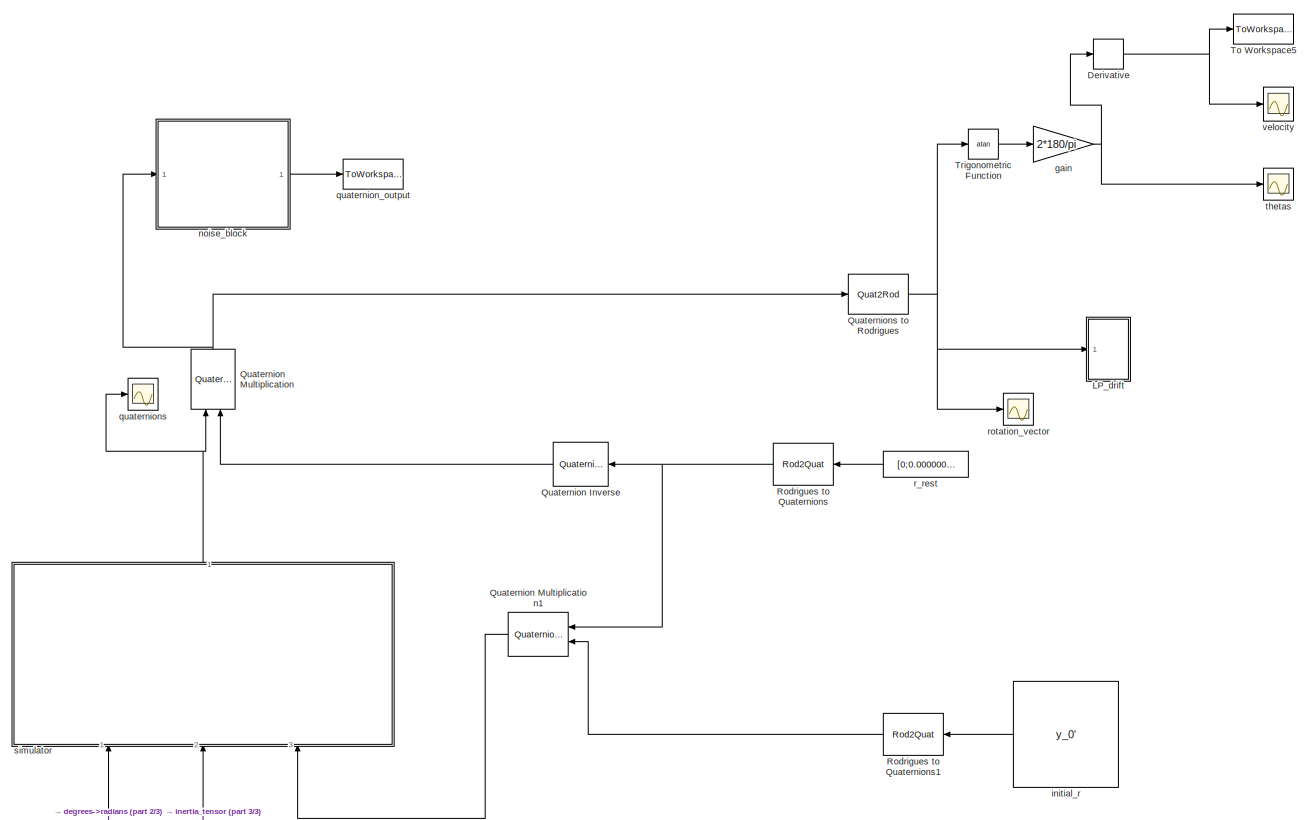
[diagram: root canvas - part 1/3, center side, full height]
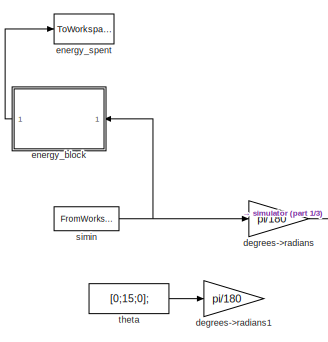
[diagram: root canvas - part 2/3, middle left region]
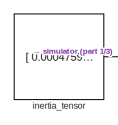
[diagram: root canvas - part 3/3, bottom left region]
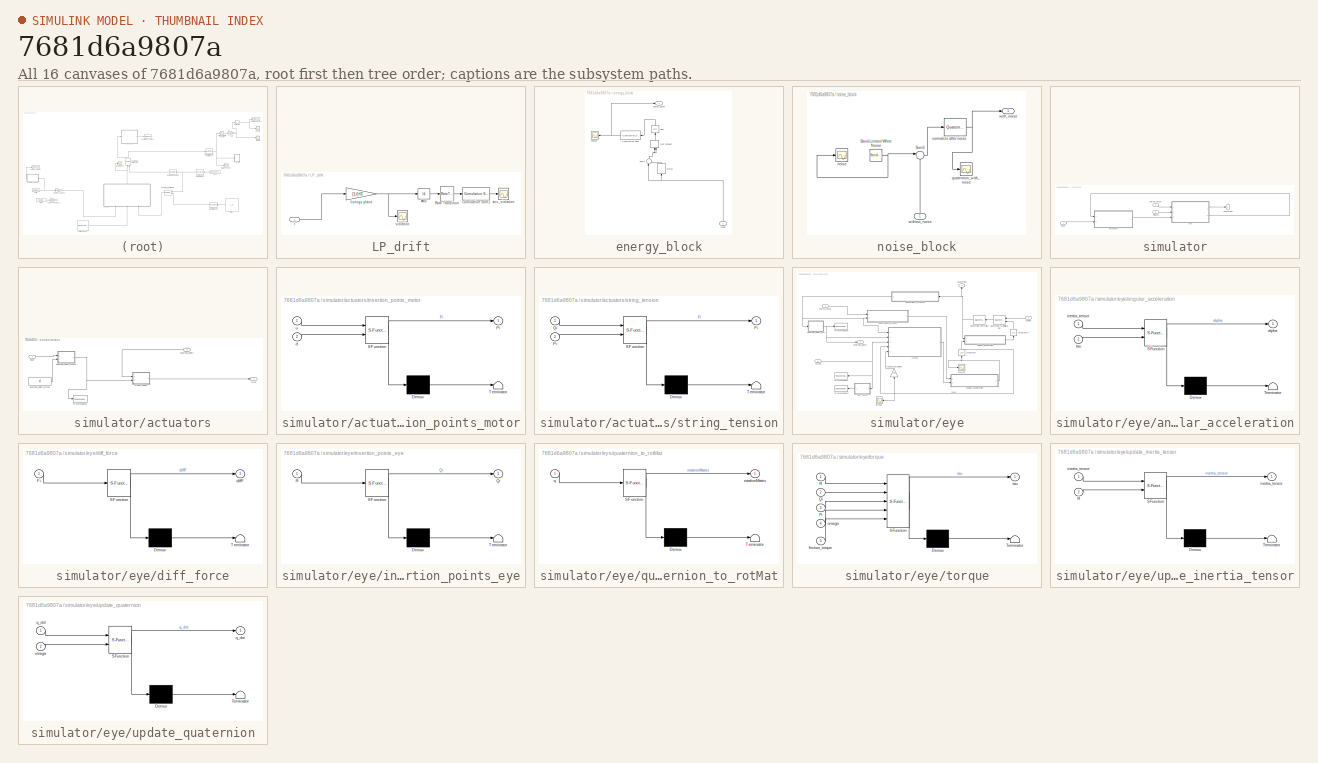
[diagram: thumbnail index - all 16 canvases of the model, root first then tree order]
MODEL slx_7681d6a9807a
KIND model
CONFIG AbsTol = auto
CONFIG EnableMultiTasking = off
CONFIG FixedStep = auto
CONFIG MaxStep = auto
CONFIG MinStep = auto
CONFIG RelTol = 1e-3
CONFIG SampleTimeConstraint = Unconstrained
CONFIG Solver = VariableStepAuto
CONFIG SolverName = VariableStepAuto
CONFIG StartTime = 0.0
CONFIG StopTime = 0.5
BLOCK [Derivative] Derivative
BLOCK [SubSystem] LP_drift
  Ports = [1]
  RequestExecContextInheritance = off
  Variant = off
BLOCK [Abs] LP_drift/Abs
  SaturateOnIntegerOverflow = off
BLOCK [Reference] LP_drift/Cumulative Sum1  REF=dspmathops/Cumulative
Sum
  Ports = [1, 1]
  SourceBlock = dspmathops/Cumulative\nSum
  SourceProductBaseCode = DS
  SourceProductName = DSP System Toolbox
  SourceType = Cumulative Sum
  UserDataPersistent = on
BLOCK [RateTransition] LP_drift/Rate Transition
  OutPortSampleTime = 0.01
BLOCK [Scope] LP_drift/acc_violation
  NumInputPorts = 1
  Ports = [1]
  ScopeSpecificationString = Simulink.scopes.TimeScopeBlockCfg('CurrentConfiguration', extmgr.ConfigurationSet(extmgr.Configuration('Core','General UI',true),extmgr.Configuration('Core','Source UI',true),extmgr.Configuration('Sources','WiredSimulink',true,'DataLoggingVariableName','ScopeData2'),extmgr.Configuration('Visuals','Time Domain',true,'SerializedDisplays',{struct('MinYLimReal','-0.01991','MaxYLimReal','0.17923','YLab...<+1756ch>
BLOCK [Gain] LP_drift/listings plane
  Gain = [1;0;0]'
  Multiplication = Matrix(K*u)
  OutDataTypeStr = Inherit: Inherit via internal rule
  ParamDataTypeStr = Inherit: Inherit via internal rule
  SaturateOnIntegerOverflow = off
BLOCK [Inport] LP_drift/r
  IconDisplay = Port number
BLOCK [Scope] LP_drift/violation
  NumInputPorts = 1
  Ports = [1]
  ScopeSpecificationString = Simulink.scopes.TimeScopeBlockCfg('CurrentConfiguration', extmgr.ConfigurationSet(extmgr.Configuration('Core','General UI',true,'FigureColor',[0 0 0]),extmgr.Configuration('Core','Source UI',true),extmgr.Configuration('Sources','WiredSimulink',true,'DataLoggingVariableName','ScopeData1'),extmgr.Configuration('Visuals','Time Domain',true,'SerializedDisplays',{struct('MinYLimReal','-0.01991','MaxYLi...<+1864ch>
BLOCK [Reference] Quaternion Inverse  REF=aerolibutil/Quaternion
Inverse
  Ports = [1, 1]
  SourceBlock = aerolibutil/Quaternion\nInverse
  SourceProductBaseCode = AE
  SourceProductName = Aerospace Blockset
  SourceType = Quaternion Inverse
BLOCK [Reference] Quaternion Multiplication  REF=aerolibutil/Quaternion
Multiplication
  Ports = [2, 1]
  SourceBlock = aerolibutil/Quaternion\nMultiplication
  SourceProductBaseCode = AE
  SourceProductName = Aerospace Blockset
  SourceType = Quaternion Multiplication
BLOCK [Reference] Quaternion Multiplication1  REF=aerolibutil/Quaternion
Multiplication
  Ports = [2, 1]
  SourceBlock = aerolibutil/Quaternion\nMultiplication
  SourceProductBaseCode = AE
  SourceProductName = Aerospace Blockset
  SourceType = Quaternion Multiplication
BLOCK [Quat2Rod] Quaternions to Rodrigues
  Ports = [1, 1]
BLOCK [Rod2Quat] Rodrigues to Quaternions
  Ports = [1, 1]
BLOCK [Rod2Quat] Rodrigues to Quaternions1
  Ports = [1, 1]
BLOCK [ToWorkspace] To Workspace5
  FixptAsFi = on
  MaxDataPoints = inf
  Ports = [1]
  SampleTime = 0.01
  Save2DSignal = 3-D array (concatenate along third dimension)
  SaveFormat = Timeseries
  VariableName = Velocity
BLOCK [Trigonometry] Trigonometric Function
  Operator = atan
  Ports = [1, 1]
BLOCK [Gain] degrees->radians
  Gain = pi/180
  OutDataTypeStr = Inherit: Inherit via internal rule
  ParamDataTypeStr = Inherit: Inherit via internal rule
  SaturateOnIntegerOverflow = off
BLOCK [Gain] degrees->radians1
  Gain = pi/180
  OutDataTypeStr = Inherit: Inherit via internal rule
  ParamDataTypeStr = Inherit: Inherit via internal rule
  SaturateOnIntegerOverflow = off
BLOCK [SubSystem] energy_block
  Ports = [1, 1]
  RequestExecContextInheritance = off
  Variant = off
BLOCK [Reference] energy_block/Cumulative Sum  REF=dspmathops/Cumulative
Sum
  Ports = [1, 1]
  SourceBlock = dspmathops/Cumulative\nSum
  SourceProductBaseCode = DS
  SourceProductName = DSP System Toolbox
  SourceType = Cumulative Sum
  UserDataPersistent = on
BLOCK [Delay] energy_block/Delay
  DelayLength = 1
  InitialCondition = 0
  InputPortMap = u0
  Ports = [1, 1]
  SampleTime = 0.01
BLOCK [DotProduct] energy_block/Dot Product
  OutDataTypeStr = Inherit: Inherit via internal rule
BLOCK [Sqrt] energy_block/Sqrt
BLOCK [Sum] energy_block/Sum4
  IconShape = round
  InputSameDT = off
  Inputs = |+-
  OutDataTypeStr = Inherit: Inherit via internal rule
  Ports = [2, 1]
  SaturateOnIntegerOverflow = off
BLOCK [Scope] energy_block/energy
  NumInputPorts = 1
  Ports = [1]
  ScopeSpecificationString = Simulink.scopes.TimeScopeBlockCfg('CurrentConfiguration', extmgr.ConfigurationSet(extmgr.Configuration('Core','General UI',true,'FigureColor',[0 0 0]),extmgr.Configuration('Core','Source UI',true),extmgr.Configuration('Sources','WiredSimulink',true,'DataLoggingVariableName','ScopeData1'),extmgr.Configuration('Visuals','Time Domain',true,'SerializedDisplays',{struct('MinYLimReal','-48168.16281','Ma...<+1882ch>
BLOCK [Outport] energy_block/energy_spent
  IconDisplay = Port number
BLOCK [Inport] energy_block/input
  IconDisplay = Port number
BLOCK [ToWorkspace] energy_spent
  FixptAsFi = on
  MaxDataPoints = inf
  Ports = [1]
  SampleTime = 0.01
  Save2DSignal = 3-D array (concatenate along third dimension)
  SaveFormat = Timeseries
  VariableName = Energy
BLOCK [Gain] gain
  Gain = 2*180/pi
  OutDataTypeStr = Inherit: Inherit via internal rule
  ParamDataTypeStr = Inherit: Inherit via internal rule
  SaturateOnIntegerOverflow = off
BLOCK [Constant] inertia_tensor
  Value = [ 0.0004759 -0.0000001 0.0000111;-0.0000001 0.0004316 0;0.0000111 0 0.0003956];
BLOCK [Constant] initial_r
  Value = y_0'
BLOCK [SubSystem] noise_block
  Ports = [1, 1]
  RequestExecContextInheritance = off
  Variant = off
BLOCK [Reference] noise_block/Band-Limited White Noise  REF=simulink/Sources/Band-Limited
White Noise
  Ports = [0, 1]
  SourceBlock = simulink/Sources/Band-Limited\nWhite Noise
  SourceProductBaseCode = SL
  SourceProductName = Simulink
  SourceType = Band-Limited White Noise.
BLOCK [Sum] noise_block/Sum3
  IconShape = round
  InputSameDT = off
  Inputs = |++
  OutDataTypeStr = Inherit: Inherit via internal rule
  Ports = [2, 1]
  SaturateOnIntegerOverflow = off
BLOCK [Scope] noise_block/noise
  NumInputPorts = 1
  Ports = [1]
  ScopeSpecificationString = Simulink.scopes.TimeScopeBlockCfg('CurrentConfiguration', extmgr.ConfigurationSet(extmgr.Configuration('Core','General UI',true),extmgr.Configuration('Core','Source UI',true),extmgr.Configuration('Sources','WiredSimulink',true,'DataLoggingVariableName','ScopeData2'),extmgr.Configuration('Visuals','Time Domain',true,'SerializedDisplays',{struct('MinYLimReal','-0.0093','MaxYLimReal','0.0119','YLabel...<+1749ch>
BLOCK [Reference] noise_block/normalize after noise  REF=sharedutil/Quaternion
Normalize
  Ports = [1, 1]
  SourceBlock = sharedutil/Quaternion\nNormalize
  SourceType = Quaternion Normalize
BLOCK [Scope] noise_block/quaternion_with_noise
  NumInputPorts = 1
  Ports = [1]
  ScopeSpecificationString = Simulink.scopes.TimeScopeBlockCfg('CurrentConfiguration', extmgr.ConfigurationSet(extmgr.Configuration('Core','General UI',true),extmgr.Configuration('Core','Source UI',true),extmgr.Configuration('Sources','WiredSimulink',true,'DataLoggingVariableName','ScopeData1'),extmgr.Configuration('Visuals','Time Domain',true,'SerializedDisplays',{struct('MinYLimReal','-0.41073','MaxYLimReal','1.15675','YLab...<+1505ch>
BLOCK [Outport] noise_block/with_noise
  IconDisplay = Port number
BLOCK [Inport] noise_block/without_noise
  IconDisplay = Port number
BLOCK [ToWorkspace] quaternion_output
  FixptAsFi = on
  MaxDataPoints = inf
  Ports = [1]
  SampleTime = 0.01
  Save2DSignal = 3-D array (concatenate along third dimension)
  SaveFormat = Timeseries
  VariableName = Q_imu
BLOCK [Scope] quaternions
  NumInputPorts = 1
  Ports = [1]
  ScopeSpecificationString = Simulink.scopes.TimeScopeBlockCfg('CurrentConfiguration', extmgr.ConfigurationSet(extmgr.Configuration('Core','General UI',true),extmgr.Configuration('Core','Source UI',true),extmgr.Configuration('Sources','WiredSimulink',true,'DataLoggingVariableName','ScopeData2'),extmgr.Configuration('Visuals','Time Domain',true,'SerializedDisplays',{struct('MinYLimReal','-0.41073','MaxYLimReal','1.15675','YLab...<+1552ch>
BLOCK [Constant] r_rest
  Value = [0;0.000000000000000000000001+0*-0.012776505264866;0]
BLOCK [Scope] rotation_vector
  NumInputPorts = 1
  Ports = [1]
  ScopeSpecificationString = Simulink.scopes.TimeScopeBlockCfg('CurrentConfiguration', extmgr.ConfigurationSet(extmgr.Configuration('Core','General UI',true),extmgr.Configuration('Core','Source UI',true),extmgr.Configuration('Sources','WiredSimulink',true,'DataLoggingVariableName','ScopeData1'),extmgr.Configuration('Visuals','Time Domain',true,'SerializedDisplays',{struct('MinYLimReal','-0.04388','MaxYLimReal','0.20069','YLab...<+1846ch>
BLOCK [FromWorkspace] simin
  SampleTime = 0.01
  VariableName = simin
  ZeroCross = on
BLOCK [SubSystem] simulator
  Ports = [3, 1]
  RequestExecContextInheritance = off
  Variant = off
BLOCK [SubSystem] simulator/actuators
  Ports = [2, 1]
  RequestExecContextInheritance = off
  Variant = off
BLOCK [ToWorkspace] simulator/actuators/To Workspace1
  FixptAsFi = on
  MaxDataPoints = inf
  Ports = [1]
  SampleTime = -1
  Save2DSignal = 3-D array (concatenate along third dimension)
  SaveFormat = Timeseries
  VariableName = Pi
BLOCK [Outport] simulator/actuators/force
  IconDisplay = Port number
BLOCK [Inport] simulator/actuators/input
  IconDisplay = Port number
  Port = 2
BLOCK [Inport] simulator/actuators/insertion_points
  IconDisplay = Port number
BLOCK [SubSystem] simulator/actuators/insertion_points_motor
  ErrorFcn = Stateflow.Translate.translate
  PermitHierarchicalResolution = ExplicitOnly
  Ports = [2, 1]
  RequestExecContextInheritance = off
  SFBlockType = MATLAB Function
  TreatAsAtomicUnit = on
  Variant = off
BLOCK [Demux] simulator/actuators/insertion_points_motor/ Demux 
  Outputs = 1
  Ports = [1, 1]
BLOCK [S-Function] simulator/actuators/insertion_points_motor/ SFunction 
  EnableBusSupport = on
  FunctionName = sf_sfun
  PortCounts = [2 2]
  Ports = [2, 2]
  SFcnIsStateOwnerBlock = off
  SFunctionDeploymentMode = off
  Tag = Stateflow S-Function Eve_v3_Simulator 4
BLOCK [Terminator] simulator/actuators/insertion_points_motor/ Terminator 
BLOCK [Outport] simulator/actuators/insertion_points_motor/Pi
  IconDisplay = Port number
BLOCK [Inport] simulator/actuators/insertion_points_motor/d
  IconDisplay = Port number
  Port = 2
BLOCK [Inport] simulator/actuators/insertion_points_motor/u
  IconDisplay = Port number
BLOCK [Constant] simulator/actuators/insertion_points_offset
  Value = d
BLOCK [SubSystem] simulator/actuators/string_tension
  ErrorFcn = Stateflow.Translate.translate
  PermitHierarchicalResolution = ExplicitOnly
  Ports = [2, 1]
  RequestExecContextInheritance = off
  SFBlockType = MATLAB Function
  TreatAsAtomicUnit = on
  Variant = off
BLOCK [Demux] simulator/actuators/string_tension/ Demux 
  Outputs = 1
  Ports = [1, 1]
BLOCK [S-Function] simulator/actuators/string_tension/ SFunction 
  EnableBusSupport = on
  FunctionName = sf_sfun
  PortCounts = [2 2]
  Ports = [2, 2]
  SFcnIsStateOwnerBlock = off
  SFunctionDeploymentMode = off
  Tag = Stateflow S-Function Eve_v3_Simulator 6
BLOCK [Terminator] simulator/actuators/string_tension/ Terminator 
BLOCK [Outport] simulator/actuators/string_tension/Fi
  IconDisplay = Port number
BLOCK [Inport] simulator/actuators/string_tension/Pi
  IconDisplay = Port number
  Port = 2
BLOCK [Inport] simulator/actuators/string_tension/Qi
  IconDisplay = Port number
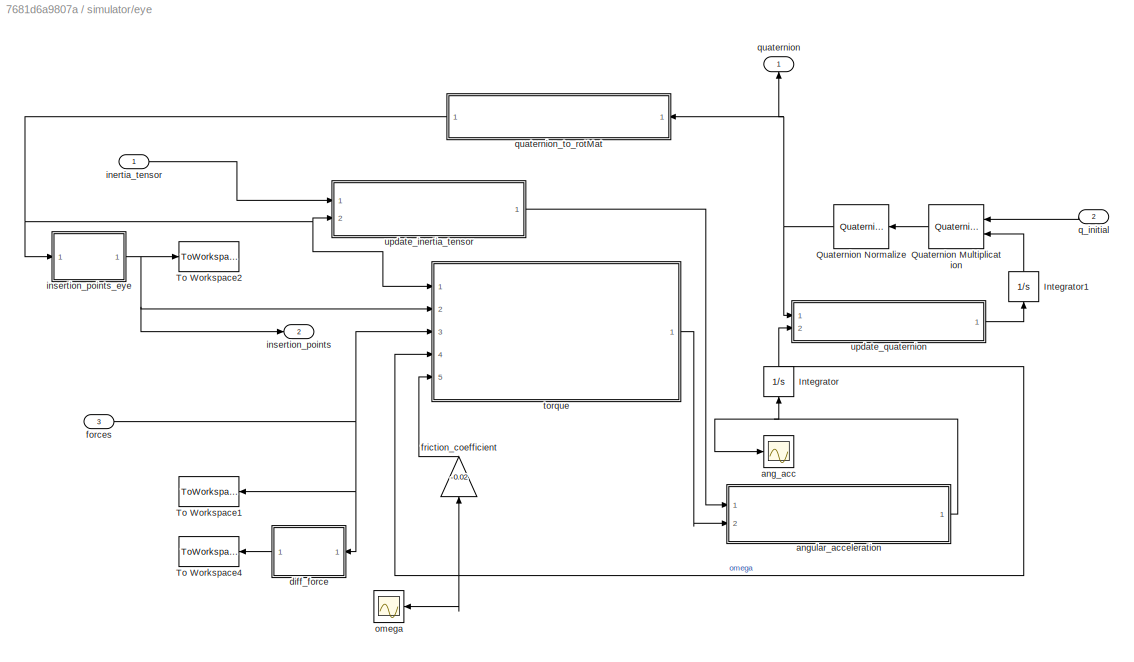
BLOCK [SubSystem] simulator/eye
  Ports = [3, 2]
  RequestExecContextInheritance = off
  Variant = off
BLOCK [Integrator] simulator/eye/Integrator
  Ports = [1, 1]
BLOCK [Integrator] simulator/eye/Integrator1
  InitialCondition = [1 0 0 0]
  Ports = [1, 1]
BLOCK [Reference] simulator/eye/Quaternion Multiplication  REF=aerolibutil/Quaternion
Multiplication
  Ports = [2, 1]
  SourceBlock = aerolibutil/Quaternion\nMultiplication
  SourceProductBaseCode = AE
  SourceProductName = Aerospace Blockset
  SourceType = Quaternion Multiplication
BLOCK [Reference] simulator/eye/Quaternion Normalize  REF=sharedutil/Quaternion
Normalize
  Ports = [1, 1]
  SourceBlock = sharedutil/Quaternion\nNormalize
  SourceType = Quaternion Normalize
BLOCK [ToWorkspace] simulator/eye/To Workspace1
  FixptAsFi = on
  MaxDataPoints = inf
  Ports = [1]
  SampleTime = 0.01
  Save2DSignal = 3-D array (concatenate along third dimension)
  SaveFormat = Timeseries
  VariableName = Fi1
BLOCK [ToWorkspace] simulator/eye/To Workspace2
  FixptAsFi = on
  MaxDataPoints = inf
  Ports = [1]
  SampleTime = -1
  Save2DSignal = 3-D array (concatenate along third dimension)
  SaveFormat = Timeseries
  VariableName = Qi
BLOCK [ToWorkspace] simulator/eye/To Workspace4
  FixptAsFi = on
  MaxDataPoints = inf
  Ports = [1]
  SampleTime = 0.1
  Save2DSignal = 3-D array (concatenate along third dimension)
  SaveFormat = Timeseries
  VariableName = Fi
BLOCK [Scope] simulator/eye/ang_acc
  NumInputPorts = 1
  Ports = [1]
  ScopeSpecificationString = Simulink.scopes.TimeScopeBlockCfg('CurrentConfiguration', extmgr.ConfigurationSet(extmgr.Configuration('Core','General UI',true),extmgr.Configuration('Core','Source UI',true),extmgr.Configuration('Sources','WiredSimulink',true),extmgr.Configuration('Visuals','Time Domain',true,'SerializedDisplays',{struct('MinYLimReal','-211.56247','MaxYLimReal','208.748','YLabelReal','','MinYLimMag',' 0.00000','M...<+1807ch>
BLOCK [SubSystem] simulator/eye/angular_acceleration
  ErrorFcn = Stateflow.Translate.translate
  PermitHierarchicalResolution = ExplicitOnly
  Ports = [2, 1]
  RequestExecContextInheritance = off
  SFBlockType = MATLAB Function
  TreatAsAtomicUnit = on
  Variant = off
BLOCK [Demux] simulator/eye/angular_acceleration/ Demux 
  Outputs = 1
  Ports = [1, 1]
BLOCK [S-Function] simulator/eye/angular_acceleration/ SFunction 
  EnableBusSupport = on
  FunctionName = sf_sfun
  PortCounts = [2 2]
  Ports = [2, 2]
  SFcnIsStateOwnerBlock = off
  SFunctionDeploymentMode = off
  Tag = Stateflow S-Function Eve_v3_Simulator 9
BLOCK [Terminator] simulator/eye/angular_acceleration/ Terminator 
BLOCK [Outport] simulator/eye/angular_acceleration/alpha
  IconDisplay = Port number
BLOCK [Inport] simulator/eye/angular_acceleration/inertia_tensor
  IconDisplay = Port number
BLOCK [Inport] simulator/eye/angular_acceleration/tau
  IconDisplay = Port number
  Port = 2
BLOCK [SubSystem] simulator/eye/diff_force
  ErrorFcn = Stateflow.Translate.translate
  PermitHierarchicalResolution = ExplicitOnly
  Ports = [1, 1]
  RequestExecContextInheritance = off
  SFBlockType = MATLAB Function
  TreatAsAtomicUnit = on
  Variant = off
BLOCK [Demux] simulator/eye/diff_force/ Demux 
  Outputs = 1
  Ports = [1, 1]
BLOCK [S-Function] simulator/eye/diff_force/ SFunction 
  EnableBusSupport = on
  FunctionName = sf_sfun
  PortCounts = [1 2]
  Ports = [1, 2]
  SFcnIsStateOwnerBlock = off
  SFunctionDeploymentMode = off
  Tag = Stateflow S-Function Eve_v3_Simulator 7
BLOCK [Terminator] simulator/eye/diff_force/ Terminator 
BLOCK [Inport] simulator/eye/diff_force/Fi
  IconDisplay = Port number
BLOCK [Outport] simulator/eye/diff_force/diffF
  IconDisplay = Port number
BLOCK [Inport] simulator/eye/forces
  IconDisplay = Port number
  Port = 3
BLOCK [Gain] simulator/eye/friction_coefficient
  Gain = -0.02
  OutDataTypeStr = Inherit: Inherit via internal rule
  ParamDataTypeStr = Inherit: Inherit via internal rule
  SaturateOnIntegerOverflow = off
BLOCK [Inport] simulator/eye/inertia_tensor
  IconDisplay = Port number
BLOCK [Outport] simulator/eye/insertion_points
  IconDisplay = Port number
  Port = 2
BLOCK [SubSystem] simulator/eye/insertion_points_eye
  ErrorFcn = Stateflow.Translate.translate
  PermitHierarchicalResolution = ExplicitOnly
  Ports = [1, 1]
  RequestExecContextInheritance = off
  SFBlockType = MATLAB Function
  TreatAsAtomicUnit = on
  Variant = off
BLOCK [Demux] simulator/eye/insertion_points_eye/ Demux 
  Outputs = 1
  Ports = [1, 1]
BLOCK [S-Function] simulator/eye/insertion_points_eye/ SFunction 
  EnableBusSupport = on
  FunctionName = sf_sfun
  PortCounts = [1 2]
  Ports = [1, 2]
  SFcnIsStateOwnerBlock = off
  SFunctionDeploymentMode = off
  Tag = Stateflow S-Function Eve_v3_Simulator 5
BLOCK [Terminator] simulator/eye/insertion_points_eye/ Terminator 
BLOCK [Outport] simulator/eye/insertion_points_eye/Qi
  IconDisplay = Port number
BLOCK [Inport] simulator/eye/insertion_points_eye/R
  IconDisplay = Port number
BLOCK [Scope] simulator/eye/omega
  NumInputPorts = 1
  Ports = [1]
  ScopeSpecificationString = Simulink.scopes.TimeScopeBlockCfg('CurrentConfiguration', extmgr.ConfigurationSet(extmgr.Configuration('Core','General UI',true),extmgr.Configuration('Core','Source UI',true),extmgr.Configuration('Sources','WiredSimulink',true,'DataLoggingVariableName','ScopeData1'),extmgr.Configuration('Visuals','Time Domain',true,'SerializedDisplays',{struct('MinYLimReal','-2.77127','MaxYLimReal','1.13674','YLab...<+1774ch>
BLOCK [Inport] simulator/eye/q_initial
  IconDisplay = Port number
  Port = 2
BLOCK [Outport] simulator/eye/quaternion
  IconDisplay = Port number
BLOCK [SubSystem] simulator/eye/quaternion_to_rotMat
  ErrorFcn = Stateflow.Translate.translate
  PermitHierarchicalResolution = ExplicitOnly
  Ports = [1, 1]
  RequestExecContextInheritance = off
  SFBlockType = MATLAB Function
  TreatAsAtomicUnit = on
  Variant = off
BLOCK [Demux] simulator/eye/quaternion_to_rotMat/ Demux 
  Outputs = 1
  Ports = [1, 1]
BLOCK [S-Function] simulator/eye/quaternion_to_rotMat/ SFunction 
  EnableBusSupport = on
  FunctionName = sf_sfun
  PortCounts = [1 2]
  Ports = [1, 2]
  SFcnIsStateOwnerBlock = off
  SFunctionDeploymentMode = off
  Tag = Stateflow S-Function Eve_v3_Simulator 3
BLOCK [Terminator] simulator/eye/quaternion_to_rotMat/ Terminator 
BLOCK [Inport] simulator/eye/quaternion_to_rotMat/q
  IconDisplay = Port number
BLOCK [Outport] simulator/eye/quaternion_to_rotMat/rotationMatrix
  IconDisplay = Port number
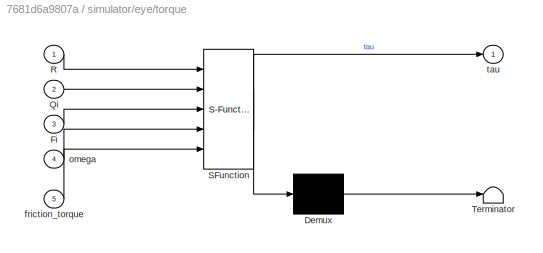
BLOCK [SubSystem] simulator/eye/torque
  ErrorFcn = Stateflow.Translate.translate
  PermitHierarchicalResolution = ExplicitOnly
  Ports = [5, 1]
  RequestExecContextInheritance = off
  SFBlockType = MATLAB Function
  TreatAsAtomicUnit = on
  Variant = off
BLOCK [Demux] simulator/eye/torque/ Demux 
  Outputs = 1
  Ports = [1, 1]
BLOCK [S-Function] simulator/eye/torque/ SFunction 
  EnableBusSupport = on
  FunctionName = sf_sfun
  PortCounts = [5 2]
  Ports = [5, 2]
  SFcnIsStateOwnerBlock = off
  SFunctionDeploymentMode = off
  Tag = Stateflow S-Function Eve_v3_Simulator 8
BLOCK [Terminator] simulator/eye/torque/ Terminator 
BLOCK [Inport] simulator/eye/torque/Fi
  IconDisplay = Port number
  Port = 3
BLOCK [Inport] simulator/eye/torque/Qi
  IconDisplay = Port number
  Port = 2
BLOCK [Inport] simulator/eye/torque/R
  IconDisplay = Port number
BLOCK [Inport] simulator/eye/torque/friction_torque
  IconDisplay = Port number
  Port = 5
BLOCK [Inport] simulator/eye/torque/omega
  IconDisplay = Port number
  Port = 4
BLOCK [Outport] simulator/eye/torque/tau
  IconDisplay = Port number
BLOCK [SubSystem] simulator/eye/update_inertia_tensor
  ErrorFcn = Stateflow.Translate.translate
  PermitHierarchicalResolution = ExplicitOnly
  Ports = [2, 1]
  RequestExecContextInheritance = off
  SFBlockType = MATLAB Function
  TreatAsAtomicUnit = on
  Variant = off
BLOCK [Demux] simulator/eye/update_inertia_tensor/ Demux 
  Outputs = 1
  Ports = [1, 1]
BLOCK [S-Function] simulator/eye/update_inertia_tensor/ SFunction 
  EnableBusSupport = on
  FunctionName = sf_sfun
  PortCounts = [2 2]
  Ports = [2, 2]
  SFcnIsStateOwnerBlock = off
  SFunctionDeploymentMode = off
  Tag = Stateflow S-Function Eve_v3_Simulator 10
BLOCK [Terminator] simulator/eye/update_inertia_tensor/ Terminator 
BLOCK [Inport] simulator/eye/update_inertia_tensor/R
  IconDisplay = Port number
  Port = 2
BLOCK [Outport] simulator/eye/update_inertia_tensor/inertia_tensor
  IconDisplay = Port number
BLOCK [Inport] simulator/eye/update_inertia_tensor/inertia_tensor 
  IconDisplay = Port number
BLOCK [SubSystem] simulator/eye/update_quaternion
  ErrorFcn = Stateflow.Translate.translate
  PermitHierarchicalResolution = ExplicitOnly
  Ports = [2, 1]
  RequestExecContextInheritance = off
  SFBlockType = MATLAB Function
  TreatAsAtomicUnit = on
  Variant = off
BLOCK [Demux] simulator/eye/update_quaternion/ Demux 
  Outputs = 1
  Ports = [1, 1]
BLOCK [S-Function] simulator/eye/update_quaternion/ SFunction 
  EnableBusSupport = on
  FunctionName = sf_sfun
  PortCounts = [2 2]
  Ports = [2, 2]
  SFcnIsStateOwnerBlock = off
  SFunctionDeploymentMode = off
  Tag = Stateflow S-Function Eve_v3_Simulator 1
BLOCK [Terminator] simulator/eye/update_quaternion/ Terminator 
BLOCK [Inport] simulator/eye/update_quaternion/omega
  IconDisplay = Port number
  Port = 2
BLOCK [Outport] simulator/eye/update_quaternion/q_dot
  IconDisplay = Port number
BLOCK [Inport] simulator/eye/update_quaternion/q_old
  IconDisplay = Port number
BLOCK [Inport] simulator/inertia_tensor
  IconDisplay = Port number
  Port = 2
BLOCK [Inport] simulator/initial_q
  IconDisplay = Port number
  Port = 3
BLOCK [Inport] simulator/input
  IconDisplay = Port number
BLOCK [Outport] simulator/quaternion
  IconDisplay = Port number
BLOCK [Constant] theta
  Value = [0;15;0];
BLOCK [Scope] thetas
  NumInputPorts = 1
  Ports = [1]
  ScopeSpecificationString = Simulink.scopes.TimeScopeBlockCfg('CurrentConfiguration', extmgr.ConfigurationSet(extmgr.Configuration('Core','General UI',true,'FigureColor',[0 0 0]),extmgr.Configuration('Core','Source UI',true),extmgr.Configuration('Sources','WiredSimulink',true,'DataLoggingVariableName','ScopeData2'),extmgr.Configuration('Visuals','Time Domain',true,'SerializedDisplays',{struct('MinYLimReal','-61.78665','MaxYL...<+1815ch>
BLOCK [Scope] velocity
  NumInputPorts = 1
  Ports = [1]
  ScopeSpecificationString = Simulink.scopes.TimeScopeBlockCfg('CurrentConfiguration', extmgr.ConfigurationSet(extmgr.Configuration('Core','General UI',true),extmgr.Configuration('Core','Source UI',true),extmgr.Configuration('Sources','WiredSimulink',true,'DataLoggingVariableName','ScopeData1'),extmgr.Configuration('Visuals','Time Domain',true,'SerializedDisplays',{struct('MinYLimReal','-524577803804.40796','MaxYLimReal','472...<+1908ch>
NET Derivative:1 -> To Workspace5:1, velocity:1
LINE LP_drift/Abs:1 -> LP_drift/Rate Transition:1
LINE LP_drift/Cumulative Sum1:1 -> LP_drift/acc_violation:1
LINE LP_drift/Rate Transition:1 -> LP_drift/Cumulative Sum1:1
NET LP_drift/listings plane:1 -> LP_drift/Abs:1, LP_drift/violation:1
LINE LP_drift/r:1 -> LP_drift/listings plane:1
LINE Quaternion Inverse:1 -> Quaternion Multiplication:2
LINE Quaternion Multiplication1:1 -> simulator:3
NET Quaternion Multiplication:1 -> Quaternions to Rodrigues:1, noise_block:1
NET Quaternions to Rodrigues:1 -> LP_drift:1, Trigonometric Function:1, rotation_vector:1
LINE Rodrigues to Quaternions1:1 -> Quaternion Multiplication1:2
NET Rodrigues to Quaternions:1 -> Quaternion Inverse:1, Quaternion Multiplication1:1
LINE Trigonometric Function:1 -> gain:1
LINE degrees->radians:1 -> simulator:1
NET energy_block/Cumulative Sum:1 -> energy_block/energy:1, energy_block/energy_spent:1
LINE energy_block/Delay:1 -> energy_block/Sum4:2
LINE energy_block/Dot Product:1 -> energy_block/Sqrt:1
LINE energy_block/Sqrt:1 -> energy_block/Cumulative Sum:1
NET energy_block/Sum4:1 -> energy_block/Dot Product:1, energy_block/Dot Product:2
NET energy_block/input:1 -> energy_block/Delay:1, energy_block/Sum4:1
LINE energy_block:1 -> energy_spent:1
NET gain:1 -> Derivative:1, thetas:1
LINE inertia_tensor:1 -> simulator:2
LINE initial_r:1 -> Rodrigues to Quaternions1:1
NET noise_block/Band-Limited White Noise:1 -> noise_block/Sum3:1, noise_block/noise:1
LINE noise_block/Sum3:1 -> noise_block/normalize after noise:1
NET noise_block/normalize after noise:1 -> noise_block/quaternion_with_noise:1, noise_block/with_noise:1
LINE noise_block/without_noise:1 -> noise_block/Sum3:2
LINE noise_block:1 -> quaternion_output:1
LINE r_rest:1 -> Rodrigues to Quaternions:1
NET simin:1 -> degrees->radians:1, energy_block:1
LINE simulator/actuators/input:1 -> simulator/actuators/insertion_points_motor:1
LINE simulator/actuators/insertion_points:1 -> simulator/actuators/string_tension:1
NET simulator/actuators/insertion_points_motor:1 -> simulator/actuators/To Workspace1:1, simulator/actuators/string_tension:2
LINE simulator/actuators/insertion_points_offset:1 -> simulator/actuators/insertion_points_motor:2
LINE simulator/actuators/string_tension:1 -> simulator/actuators/force:1
LINE simulator/actuators:1 -> simulator/eye:3
LINE simulator/eye/Integrator1:1 -> simulator/eye/Quaternion Multiplication:2
NET simulator/eye/Integrator:1 -> simulator/eye/friction_coefficient:1, simulator/eye/omega:1, simulator/eye/torque:4, simulator/eye/update_quaternion:2
LINE simulator/eye/Quaternion Multiplication:1 -> simulator/eye/Quaternion Normalize:1
NET simulator/eye/Quaternion Normalize:1 -> simulator/eye/quaternion:1, simulator/eye/quaternion_to_rotMat:1, simulator/eye/update_quaternion:1
NET simulator/eye/angular_acceleration:1 -> simulator/eye/Integrator:1, simulator/eye/ang_acc:1
LINE simulator/eye/diff_force:1 -> simulator/eye/To Workspace4:1
NET simulator/eye/forces:1 -> simulator/eye/To Workspace1:1, simulator/eye/diff_force:1, simulator/eye/torque:3
LINE simulator/eye/friction_coefficient:1 -> simulator/eye/torque:5
LINE simulator/eye/inertia_tensor:1 -> simulator/eye/update_inertia_tensor:1
NET simulator/eye/insertion_points_eye:1 -> simulator/eye/To Workspace2:1, simulator/eye/insertion_points:1, simulator/eye/torque:2
LINE simulator/eye/q_initial:1 -> simulator/eye/Quaternion Multiplication:1
NET simulator/eye/quaternion_to_rotMat:1 -> simulator/eye/insertion_points_eye:1, simulator/eye/torque:1, simulator/eye/update_inertia_tensor:2
LINE simulator/eye/torque:1 -> simulator/eye/angular_acceleration:2
LINE simulator/eye/update_inertia_tensor:1 -> simulator/eye/angular_acceleration:1
LINE simulator/eye/update_quaternion:1 -> simulator/eye/Integrator1:1
LINE simulator/eye:1 -> simulator/quaternion:1
LINE simulator/eye:2 -> simulator/actuators:1
LINE simulator/inertia_tensor:1 -> simulator/eye:1
LINE simulator/initial_q:1 -> simulator/eye:2
LINE simulator/input:1 -> simulator/actuators:2
NET simulator:1 -> Quaternion Multiplication:1, quaternions:1
LINE theta:1 -> degrees->radians1:1
note: NET lines group one-source signal fan-out (src -> all destinations, sorted); 1:1 wires keep LINE
CHART simulator/eye/update_quaternion states=1 transitions=1
  STATE_LABEL 'eML_blk_kernel()'
  STATE_LABEL "SCRIPT:\nfunction q_dot = update_quaternion(q_old, omega)\n\nq_dot = zeros(1,4);\nq_dot = 1/2*quatmultiply([0 omega(1) omega(2) omega(3)], q_old');\n"
CHART simulator/eye/quaternion_to_rotMat states=1 transitions=1
  STATE_LABEL 'eML_blk_kernel()'
  STATE_LABEL 'SCRIPT:\nfunction rotationMatrix = rotMat(q)\n\nrotationMatrix = zeros(3,3);\n\ns = norm(q)^-2;\n\nrotationMatrix(1,1) = 1-2*s*(q(3)*q(3)+q(4)*q(4));\nrotationMatrix(1,2) = 2*s*(q(3)*q(2)-q(4)*q(1));\nrotationMatrix(1,3) = 2*s*(q(2)*q(4)+q(1)*q(3));\nrotationMatrix(2,1) = 2*s*(q(3)*q(2)+q(4)*q(1));\nrotationMatrix(2,2) = 1-2*s*(q(2)*q(2)+q(4)*q(4));\nrotationMatrix(2,3) = 2*s*(q(3)*q(4)-q(1)*q(2));\nrotationMa...<+138ch>'
CHART simulator/actuators/insertion_points_motor states=1 transitions=1
  STATE_LABEL 'eML_blk_kernel()'
  STATE_LABEL 'SCRIPT:\nfunction Pi = get_Pi(u, d)\n\n% NOTE: coordinates with "1*" are the ones responsible for least effort\n% plane being tilted\n\n% get new P\naux1=d(1) -0.436 - 0.1*sin(u(1));\naux2=d(2) -0.0835;\naux3=d(3) + 0.1*cos(u(1));\nP1 = [aux1;aux2;aux3];\n\naux1=d(1) -0.436 + 0.1*sin(u(1));\naux2=d(2) -0.0835;\naux3=d(3) - 0.1*cos(u(1));\nP2 = [aux1;aux2;aux3];\n\naux1=d(1) -0.323 - 0.140*sin(u(2));\naux2=d(2) -0.1...<+398ch>'
CHART simulator/eye/insertion_points_eye states=1 transitions=1
  STATE_LABEL 'eML_blk_kernel()'
  STATE_LABEL 'SCRIPT:\nfunction Qi = get_Qi(R)\n\n% get new Q\nQ1_0 = [-0.007; 0.05302; 0.05302];\nQ2_0 = [-0.007; 0.05302; -0.05302];\n\nQ3_0 = [-0.007; -0.07498; 0];\nQ4_0 = [-0.007; 0.07498; 0];\n\nQ5_0 = [-0.007; -0.05302; 0.05302];\nQ6_0 = [-0.007; -0.05302; -0.05302];\n\nQ1 = R*Q1_0;\nQ2 = R*Q2_0;\nQ3 = R*Q3_0;\nQ4 = R*Q4_0;\nQ5 = R*Q5_0;\nQ6 = R*Q6_0;\n\n% concatenate\nQi = [Q1 Q2 Q3 Q4 Q5 Q6];'
CHART simulator/actuators/string_tension states=1 transitions=1
  STATE_LABEL 'eML_blk_kernel()'
  STATE_LABEL 'SCRIPT:\nfunction Fi = get_Fi(Qi, Pi)\n\n% constants\nk = 6;\n\nl1_0 = 36 * 10^-2;%34 * 10^-2;\nl2_0 = 36 * 10^-2;\nl3_0 = 24 * 10^-2;\nl4_0 = 24 * 10^-2;\nl5_0 = 36 * 10^-2;%34 * 10^-2;\nl6_0 = 36 * 10^-2;\n\nli_0 = [l1_0 l2_0 l3_0 l4_0 l5_0 l6_0];\n\n% connection points\nX1 = [-0.2055; 0; 0.0525];\nX2 = [-0.2055; 0; -0.0525];\n\nX5 = X1;\nX6 = X2;\n%X5 = [-0.2055; 0; 0.0625];\n%X6 = [-0.2055; 0; -0.0625];\n\n% intermed...<+1170ch>'
CHART simulator/eye/diff_force states=1 transitions=1
  STATE_LABEL 'eML_blk_kernel()'
  STATE_LABEL 'SCRIPT:\nfunction diffF = get_diffF(Fi)\n\ndiffF = 0;\n\nfor i=2:2:size(Fi,2)\n    diffF = diffF + abs(norm(Fi(:,i-1))-norm(Fi(:,i)));\nend'
CHART simulator/eye/torque states=1 transitions=1
  STATE_LABEL 'eML_blk_kernel()'
  STATE_LABEL 'SCRIPT:\nfunction tau = get_torque(R, Qi, Fi, omega, friction_torque)\n\ntau = zeros(3,1);\n\nfor i=1:6\n    tau = tau + cross(Qi(:,i), Fi(:,i));\nend\n\ncenter_mass = R*[0.02; 0; 0]; % center of mass\nmass = 0*0.248; % mass in kg\nFg = mass*[0; 0; -9.8];\ntaug = cross(center_mass, Fg);\n\ntau = tau + taug;\n\ntau = tau + friction_torque;\n% ntau = norm(tau);\nstatic_friction_torque = 0.006;\nif norm(omega) < 0.0000...<+81ch>'
CHART simulator/eye/angular_acceleration states=1 transitions=1
  STATE_LABEL 'eML_blk_kernel()'
  STATE_LABEL 'SCRIPT:\nfunction alpha = get_ang_acc(inertia_tensor, tau)\n\nalpha = zeros(3,1);\nalpha = inertia_tensor\\tau;'
CHART simulator/eye/update_inertia_tensor states=1 transitions=1
  STATE_LABEL 'eML_blk_kernel()'
  STATE_LABEL "SCRIPT:\nfunction inertia_tensor = update_inertia_tensor(inertia_tensor, R)\n\n% transform inertia tensor to world reference frame\ninertia_tensor = R'*inertia_tensor*R;"
